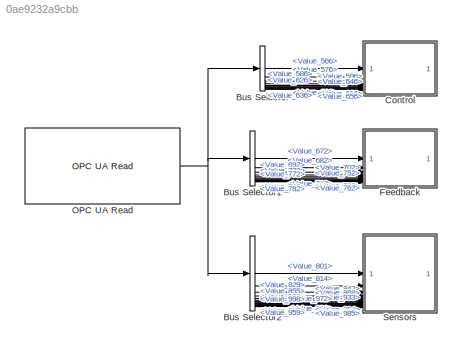
MODEL slx_0ae9232a9cbb
KIND model
CONFIG AbsTol = auto
CONFIG EnableMultiTasking = off
CONFIG FixedStep = auto
CONFIG MaxStep = auto
CONFIG MinStep = auto
CONFIG RelTol = 1e-3
CONFIG SampleTimeConstraint = Unconstrained
CONFIG SolverName = VariableStepAuto
CONFIG StartTime = 0.0
CONFIG StopTime = 10.0
BLOCK [BusSelector] Bus Selector
  OutputSignals = Value_566,Value_576,Value_586,Value_596,Value_606,Value_616,Value_626,Value_636,Value_646,Value_656
BLOCK [BusSelector] Bus Selector1
  OutputSignals = Value_672,Value_682,Value_692,Value_702,Value_712,Value_722,Value_732,Value_742,Value_752,Value_762,Value_772,Value_782
BLOCK [BusSelector] Bus Selector2
  OutputSignals = Value_801,Value_814,Value_829,Value_842,Value_855,Value_868,Value_881,Value_894,Value_907,Value_920,Value_933,Value_946,Value_959,Value_972,Value_985,Value_998
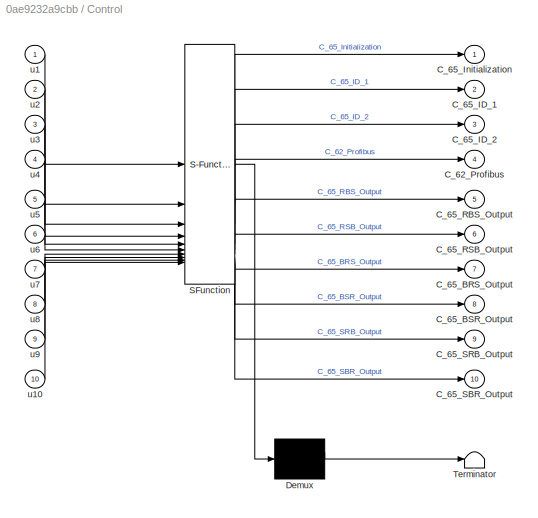
BLOCK [SubSystem] Control
  ErrorFcn = Stateflow.Translate.translate
  PermitHierarchicalResolution = ExplicitOnly
  SFBlockType = MATLAB Function
  TreatAsAtomicUnit = on
BLOCK [Demux] Control/ Demux 
  Outputs = 1
BLOCK [S-Function] Control/ SFunction 
  EnableBusSupport = off
  FunctionName = sf_sfun
  PortCounts = [10 11]
  SFcnIsStateOwnerBlock = off
  SFunctionDeploymentMode = off
  Tag = Stateflow S-Function 1
BLOCK [Terminator] Control/ Terminator 
BLOCK [Outport] Control/C_62_Profibus
  Port = 4
BLOCK [Outport] Control/C_65_BRS_Output
  Port = 7
BLOCK [Outport] Control/C_65_BSR_Output
  Port = 8
BLOCK [Outport] Control/C_65_ID_1
  Port = 2
BLOCK [Outport] Control/C_65_ID_2
  Port = 3
BLOCK [Outport] Control/C_65_Initialization
BLOCK [Outport] Control/C_65_RBS_Output
  Port = 5
BLOCK [Outport] Control/C_65_RSB_Output
  Port = 6
BLOCK [Outport] Control/C_65_SBR_Output
  Port = 10
BLOCK [Outport] Control/C_65_SRB_Output
  Port = 9
BLOCK [Inport] Control/u1
BLOCK [Inport] Control/u10
  Port = 10
BLOCK [Inport] Control/u2
  Port = 2
BLOCK [Inport] Control/u3
  Port = 3
BLOCK [Inport] Control/u4
  Port = 4
BLOCK [Inport] Control/u5
  Port = 5
BLOCK [Inport] Control/u6
  Port = 6
BLOCK [Inport] Control/u7
  Port = 7
BLOCK [Inport] Control/u8
  Port = 8
BLOCK [Inport] Control/u9
  Port = 9
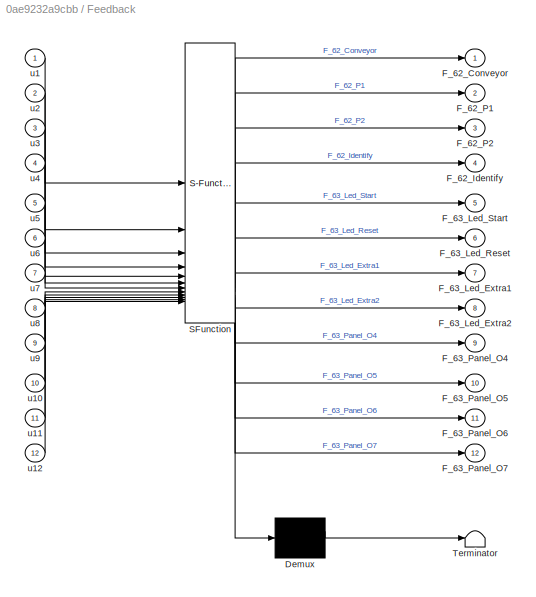
BLOCK [SubSystem] Feedback
  ErrorFcn = Stateflow.Translate.translate
  PermitHierarchicalResolution = ExplicitOnly
  SFBlockType = MATLAB Function
  TreatAsAtomicUnit = on
BLOCK [Demux] Feedback/ Demux 
  Outputs = 1
BLOCK [S-Function] Feedback/ SFunction 
  EnableBusSupport = off
  FunctionName = sf_sfun
  PortCounts = [12 13]
  SFcnIsStateOwnerBlock = off
  SFunctionDeploymentMode = off
  Tag = Stateflow S-Function 3
BLOCK [Terminator] Feedback/ Terminator 
BLOCK [Outport] Feedback/F_62_Conveyor
BLOCK [Outport] Feedback/F_62_Identify
  Port = 4
BLOCK [Outport] Feedback/F_62_P1
  Port = 2
BLOCK [Outport] Feedback/F_62_P2
  Port = 3
BLOCK [Outport] Feedback/F_63_Led_Extra1
  Port = 7
BLOCK [Outport] Feedback/F_63_Led_Extra2
  Port = 8
BLOCK [Outport] Feedback/F_63_Led_Reset
  Port = 6
BLOCK [Outport] Feedback/F_63_Led_Start
  Port = 5
BLOCK [Outport] Feedback/F_63_Panel_O4
  Port = 9
BLOCK [Outport] Feedback/F_63_Panel_O5
  Port = 10
BLOCK [Outport] Feedback/F_63_Panel_O6
  Port = 11
BLOCK [Outport] Feedback/F_63_Panel_O7
  Port = 12
BLOCK [Inport] Feedback/u1
BLOCK [Inport] Feedback/u10
  Port = 10
BLOCK [Inport] Feedback/u11
  Port = 11
BLOCK [Inport] Feedback/u12
  Port = 12
BLOCK [Inport] Feedback/u2
  Port = 2
BLOCK [Inport] Feedback/u3
  Port = 3
BLOCK [Inport] Feedback/u4
  Port = 4
BLOCK [Inport] Feedback/u5
  Port = 5
BLOCK [Inport] Feedback/u6
  Port = 6
BLOCK [Inport] Feedback/u7
  Port = 7
BLOCK [Inport] Feedback/u8
  Port = 8
BLOCK [Inport] Feedback/u9
  Port = 9
BLOCK [Reference] OPC UA Read  REF=opcualib/OPC UA Read
  SourceBlock = opcualib/OPC UA Read
  SourceType = opcUARead
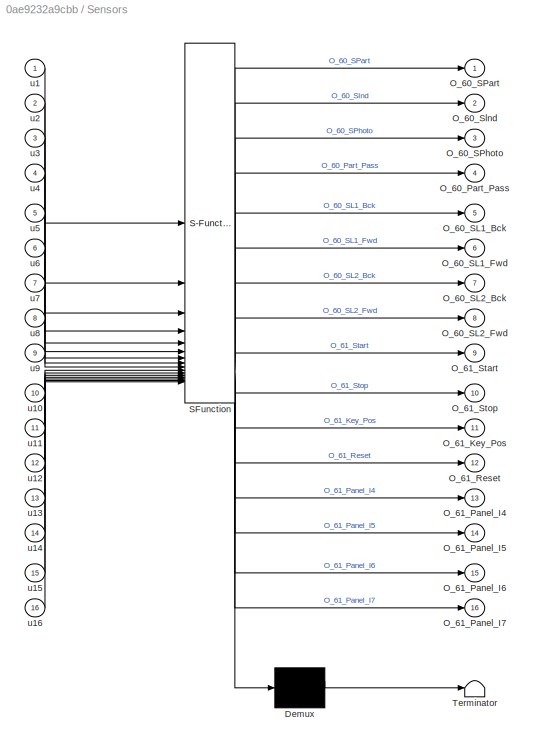
BLOCK [SubSystem] Sensors
  ErrorFcn = Stateflow.Translate.translate
  PermitHierarchicalResolution = ExplicitOnly
  SFBlockType = MATLAB Function
  TreatAsAtomicUnit = on
BLOCK [Demux] Sensors/ Demux 
  Outputs = 1
BLOCK [S-Function] Sensors/ SFunction 
  EnableBusSupport = off
  FunctionName = sf_sfun
  PortCounts = [16 17]
  SFcnIsStateOwnerBlock = off
  SFunctionDeploymentMode = off
  Tag = Stateflow S-Function 4
BLOCK [Terminator] Sensors/ Terminator 
BLOCK [Outport] Sensors/O_60_Part_Pass
  Port = 4
BLOCK [Outport] Sensors/O_60_SL1_Bck
  Port = 5
BLOCK [Outport] Sensors/O_60_SL1_Fwd
  Port = 6
BLOCK [Outport] Sensors/O_60_SL2_Bck
  Port = 7
BLOCK [Outport] Sensors/O_60_SL2_Fwd
  Port = 8
BLOCK [Outport] Sensors/O_60_SPart
BLOCK [Outport] Sensors/O_60_SPhoto
  Port = 3
BLOCK [Outport] Sensors/O_60_Slnd
  Port = 2
BLOCK [Outport] Sensors/O_61_Key_Pos
  Port = 11
BLOCK [Outport] Sensors/O_61_Panel_I4
  Port = 13
BLOCK [Outport] Sensors/O_61_Panel_I5
  Port = 14
BLOCK [Outport] Sensors/O_61_Panel_I6
  Port = 15
BLOCK [Outport] Sensors/O_61_Panel_I7
  Port = 16
BLOCK [Outport] Sensors/O_61_Reset
  Port = 12
BLOCK [Outport] Sensors/O_61_Start
  Port = 9
BLOCK [Outport] Sensors/O_61_Stop
  Port = 10
BLOCK [Inport] Sensors/u1
BLOCK [Inport] Sensors/u10
  Port = 10
BLOCK [Inport] Sensors/u11
  Port = 11
BLOCK [Inport] Sensors/u12
  Port = 12
BLOCK [Inport] Sensors/u13
  Port = 13
BLOCK [Inport] Sensors/u14
  Port = 14
BLOCK [Inport] Sensors/u15
  Port = 15
BLOCK [Inport] Sensors/u16
  Port = 16
BLOCK [Inport] Sensors/u2
  Port = 2
BLOCK [Inport] Sensors/u3
  Port = 3
BLOCK [Inport] Sensors/u4
  Port = 4
BLOCK [Inport] Sensors/u5
  Port = 5
BLOCK [Inport] Sensors/u6
  Port = 6
BLOCK [Inport] Sensors/u7
  Port = 7
BLOCK [Inport] Sensors/u8
  Port = 8
BLOCK [Inport] Sensors/u9
  Port = 9
LINE Bus Selector1:1 -> Feedback:1
LINE Bus Selector1:10 -> Feedback:10
LINE Bus Selector1:11 -> Feedback:11
LINE Bus Selector1:12 -> Feedback:12
LINE Bus Selector1:2 -> Feedback:2
LINE Bus Selector1:3 -> Feedback:3
LINE Bus Selector1:4 -> Feedback:4
LINE Bus Selector1:5 -> Feedback:5
LINE Bus Selector1:6 -> Feedback:6
LINE Bus Selector1:7 -> Feedback:7
LINE Bus Selector1:8 -> Feedback:8
LINE Bus Selector1:9 -> Feedback:9
LINE Bus Selector2:1 -> Sensors:1
LINE Bus Selector2:10 -> Sensors:10
LINE Bus Selector2:11 -> Sensors:11
LINE Bus Selector2:12 -> Sensors:12
LINE Bus Selector2:13 -> Sensors:13
LINE Bus Selector2:14 -> Sensors:14
LINE Bus Selector2:15 -> Sensors:15
LINE Bus Selector2:16 -> Sensors:16
LINE Bus Selector2:2 -> Sensors:2
LINE Bus Selector2:3 -> Sensors:3
LINE Bus Selector2:4 -> Sensors:4
LINE Bus Selector2:5 -> Sensors:5
LINE Bus Selector2:6 -> Sensors:6
LINE Bus Selector2:7 -> Sensors:7
LINE Bus Selector2:8 -> Sensors:8
LINE Bus Selector2:9 -> Sensors:9
LINE Bus Selector:1 -> Control:1
LINE Bus Selector:10 -> Control:10
LINE Bus Selector:2 -> Control:2
LINE Bus Selector:3 -> Control:3
LINE Bus Selector:4 -> Control:4
LINE Bus Selector:5 -> Control:5
LINE Bus Selector:6 -> Control:6
LINE Bus Selector:7 -> Control:7
LINE Bus Selector:8 -> Control:8
LINE Bus Selector:9 -> Control:9
NET OPC UA Read:1 -> Bus Selector1:1, Bus Selector2:1, Bus Selector:1
note: NET lines group one-source signal fan-out (src -> all destinations, sorted); 1:1 wires keep LINE
CHART Control states=1 transitions=1
  STATE_LABEL 'eML_blk_kernel()'
  STATE_LABEL 'SCRIPT:\nfunction [C_65_Initialization, C_65_ID_1, C_65_ID_2, ...\n          C_62_Profibus,C_65_RBS_Output, C_65_RSB_Output, ...\n          C_65_BRS_Output, C_65_BSR_Output,C_65_SRB_Output,... \n          C_65_SBR_Output] = ...\n          fcn_Control(u1,u2,u3,u4,u5,u6,u7,u8,u9,u10)\n\n    C_65_Initialization = u1;\n    C_65_ID_1           = u2;\n    C_65_ID_2           = u3;\n    C_62_Profibus       = u4;\n ...<+181ch>'
CHART Feedback states=1 transitions=1
  STATE_LABEL 'eML_blk_kernel()'
  STATE_LABEL 'SCRIPT:\nfunction [F_62_Conveyor, F_62_P1, F_62_P2, F_62_Identify, ...\n          F_63_Led_Start, F_63_Led_Reset, F_63_Led_Extra1, F_63_Led_Extra2, ...\n          F_63_Panel_O4, F_63_Panel_O5, F_63_Panel_O6, F_63_Panel_O7] = ...\n          fcn_Feedback(u1,u2,u3,u4,u5,u6,u7,u8,u9,u10,u11,u12)\n\n    F_62_Conveyor   = u1;\n    F_62_P1         = u2;\n    F_62_P2         = u3;\n    F_62_Identify   = u4;\n\n    F...<+207ch>'
CHART Sensors states=1 transitions=1
  STATE_LABEL 'eML_blk_kernel()'
  STATE_LABEL 'SCRIPT:\nfunction [ ...\n    O_60_SPart, O_60_Slnd, O_60_SPhoto, O_60_Part_Pass, ...\n    O_60_SL1_Bck, O_60_SL1_Fwd, O_60_SL2_Bck, O_60_SL2_Fwd, ...\n    O_61_Start, O_61_Stop, O_61_Key_Pos, O_61_Reset, ...\n    O_61_Panel_I4, O_61_Panel_I5, O_61_Panel_I6, O_61_Panel_I7] = ...\n    fcn_Sensors(u1,u2,u3,u4,u5,u6,u7,u8,u9,u10,u11,u12,u13,u14,u15,u16)\n\nO_60_SPart      = u1;\nO_60_Slnd       = u2;\nO_60_SPho...<+311ch>'
CHART  states=0 transitions=0
CHART  states=0 transitions=0
CHART  states=0 transitions=0
